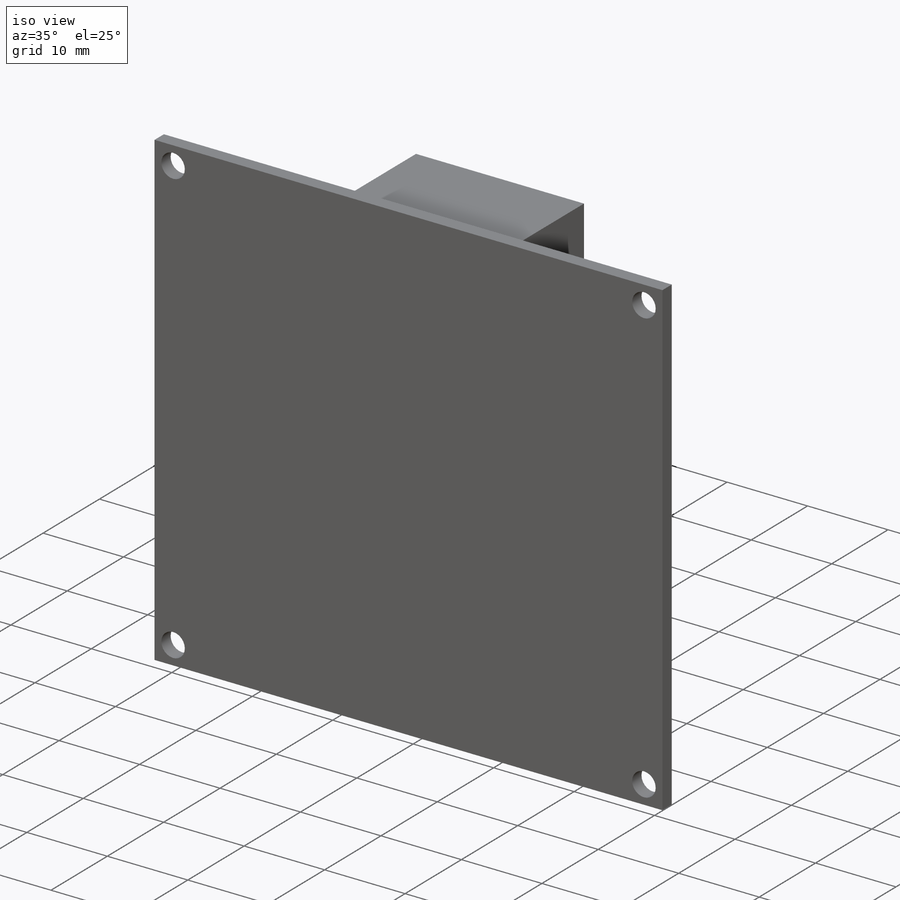
[diagram: iso view]
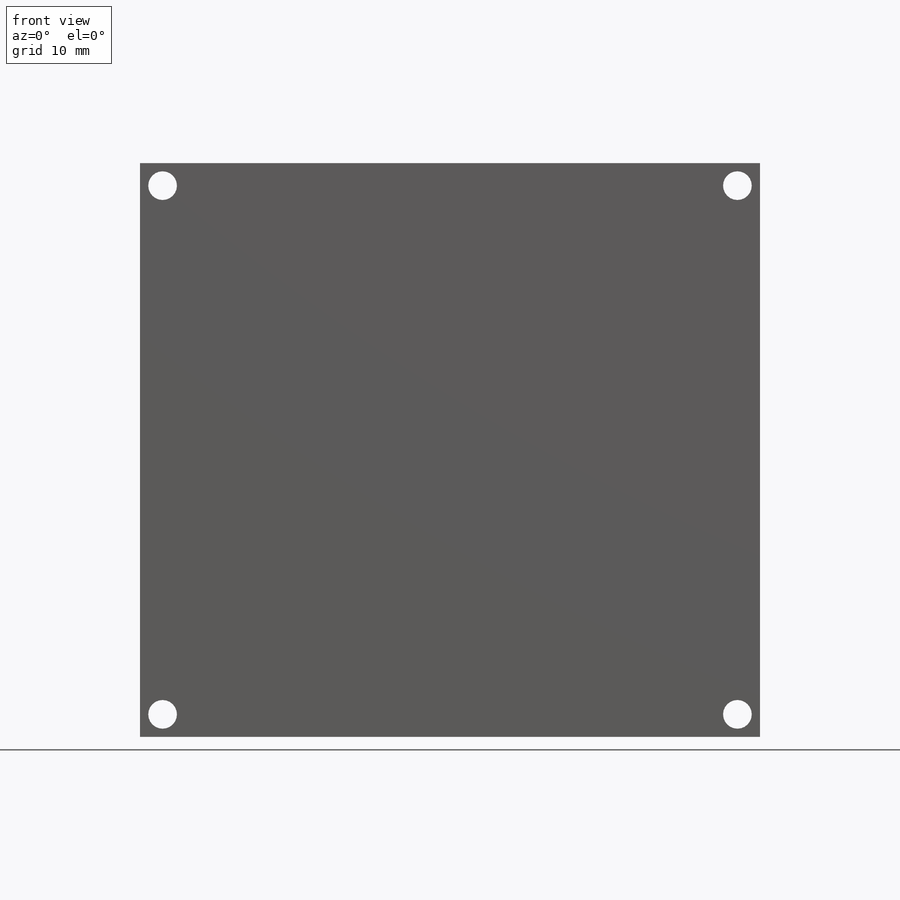
[diagram: front view]
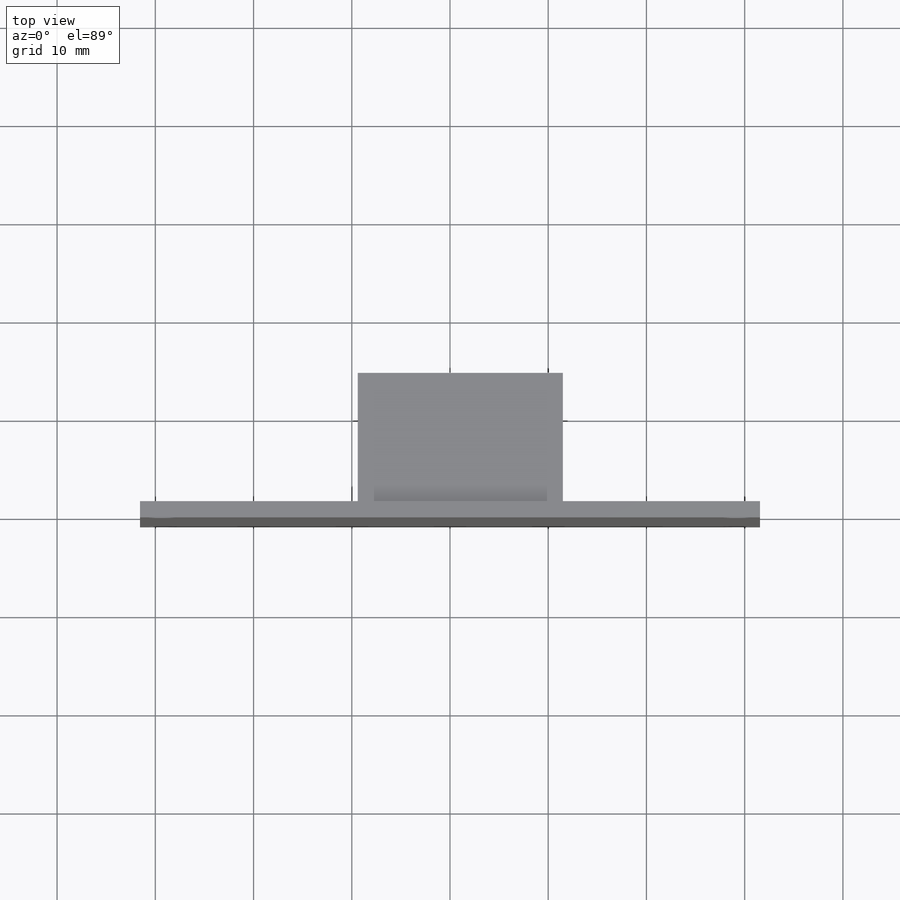
[diagram: top view]
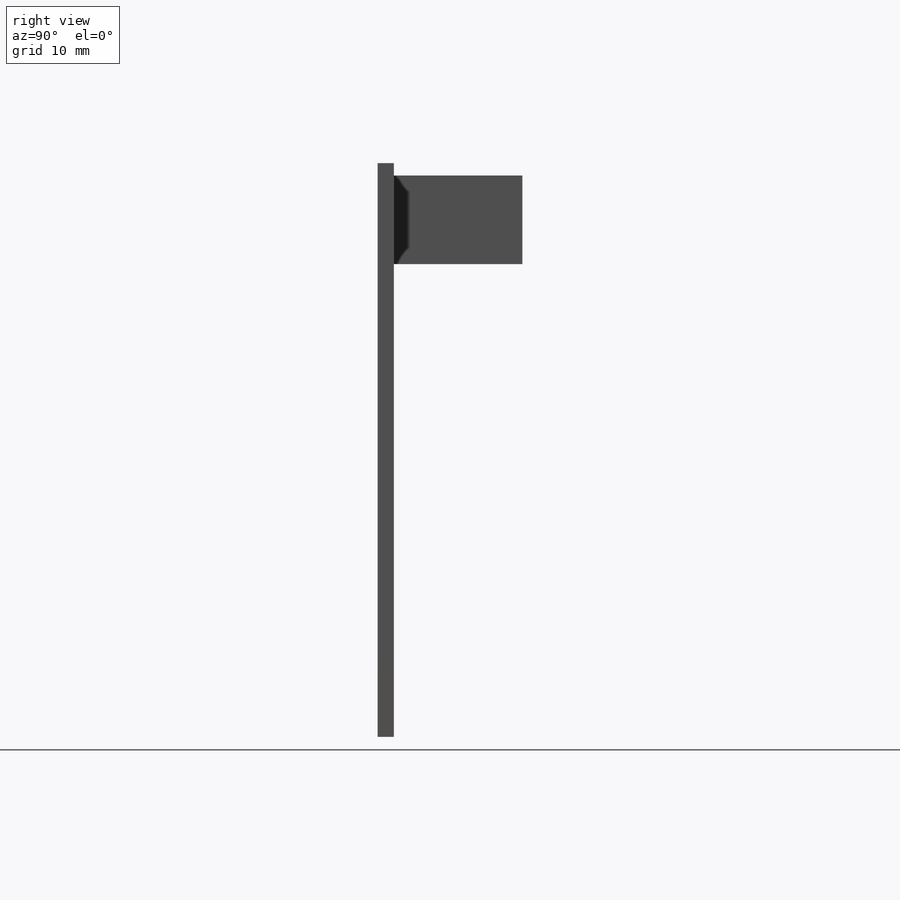
[diagram: right view]
SOLIDWORKS PART (.sldprt)
format: sldprt  version: not decoded by parser v0  size: 168,448 bytes
history: native  units: mm
features: sketch x3, extrude x2, material x1, cut_extrude x1 (+11 scaffold rows collapsed)
feature tree (18):
  scaffold x11  (default folders/planes/origin — collapsed)
  material  "Material <not specified>"
  sketch  "Sketch1"  dims[D1=58.42mm D2=63.119mm]
  extrude  "Boss-Extrude1"  Depth=1.651mm
  sketch  "Sketch3"  dims[c1.D1=2.921mm c1.D2=2.8448mm c1.D3=2.8448mm c2.D2=0.8382mm c2.D3=~0.84074mm]
  sketch  "Sketch6"  dims[c1.D1=1.27mm c1.D2=22.1742mm c1.D3=19.939mm c1.D4=19.3548mm c2.D3=20.8788mm c2.D4=9.017mm]
  extrude  "Boss-Extrude3"  Depth=13.081mm
  cut_extrude  "Cut-Extrude1"  [1 undecoded]
decode coverage: 5 of 6 modeling features carry decoded parameters
note: ~ marks probable driven/reference dimensions
note: 1 parameter value undecoded
note: suppression state not decoded; provenance and decode notes live in map.json
